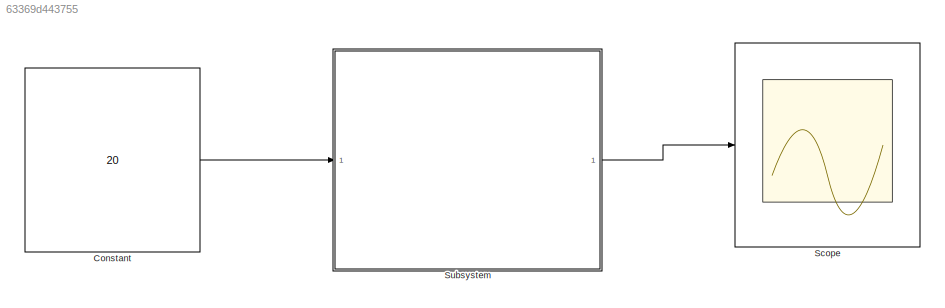
MODEL slx_63369d443755
KIND model
CONFIG AbsTol = auto
CONFIG EnableMultiTasking = off
CONFIG FixedStep = auto
CONFIG MaxStep = auto
CONFIG MinStep = auto
CONFIG RelTol = 1e-3
CONFIG SampleTimeConstraint = Unconstrained
CONFIG SolverName = VariableStepAuto
CONFIG StartTime = 0.0
CONFIG StopTime = 10.0
BLOCK [Constant] Constant
  Value = 20
BLOCK [Scope] Scope
  ActiveDisplayYMaximum = 540.46208333333334
  ActiveDisplayYMinimum = -67.458749999999981
  ContainerLayout = {"WindowBounds":[-9999,1369,1534,759],"gridDimensions":{"w":1,"h":1},"tileCount":1,"tileCoverage":1,"columnWeights":1,"rowWeights":1,"tileOccupancy":{"children":[{"id":"/Scope"},{"id":"/Subsystem/Scope"}]}}
  Floating = off
  GraphicalSettings = {"Style":{"BackgroundColor":[0.12941176470588237,0.12941176470588237,0.12941176470588237],"AxesColor":[0.07058823529411765,0.07058823529411765,0.07058823529411765],"LabelsColor":[0.8509803921568627,0.8509803921568627,0.8509803921568627],"PreserveColors":false,"Visible":[true,true,true,true],"LineStyle":["-","-","-","-"],"LineWidth":[1.5,1.5,1.5,1.5],"BarWidth":[0.9,0.9,0.9,0.9],"LineColor":["auto"...<+2319ch>
  MultipleDisplayCache = [{"MaxYLimMag":540.46208333333334,"MaxYLimReal":540.46208333333334,"MinYLimMag":0,"MinYLimReal":-67.458749999999981,"PlotAsMagnitudePhase":false,"ShowGrid":true,"ShowLegend":false,"Title":"%<SignalLabel>","YLabel":""}]
  NumInputPorts = 1
  Visible = on
  WasSavedAsWebScope = on
  WindowPosition = [649.000000,1.000000,888.000000,761.000000,]
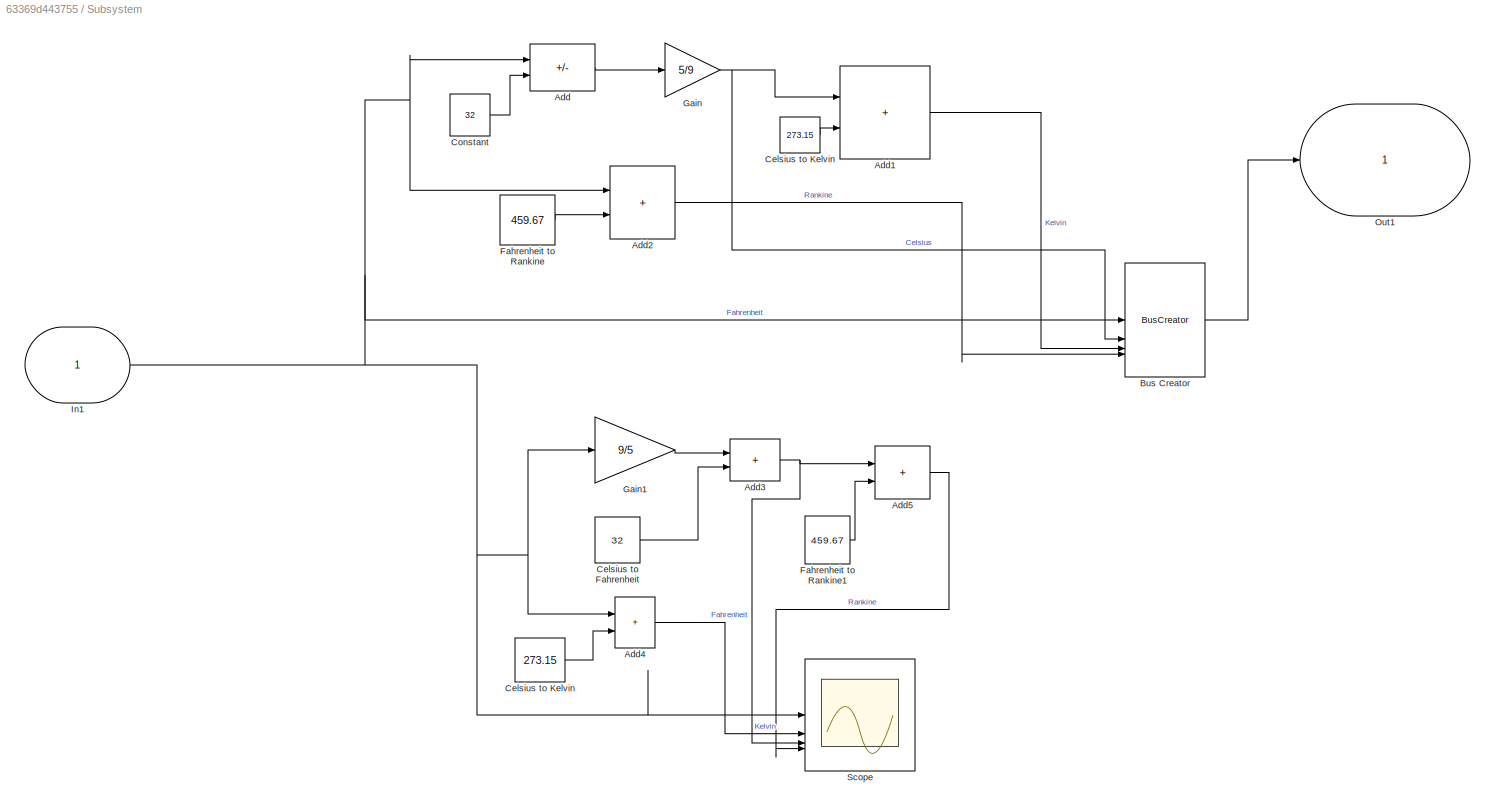
BLOCK [SubSystem] Subsystem
BLOCK [Sum] Subsystem/Add
  IconShape = rectangular
  Inputs = +-
BLOCK [Sum] Subsystem/Add1
  IconShape = rectangular
BLOCK [Sum] Subsystem/Add2
  IconShape = rectangular
BLOCK [Sum] Subsystem/Add3
  IconShape = rectangular
BLOCK [Sum] Subsystem/Add4
  IconShape = rectangular
BLOCK [Sum] Subsystem/Add5
  IconShape = rectangular
BLOCK [BusCreator] Subsystem/Bus Creator
  DisplayOption = bar
  InheritFromInputs = on
  Inputs = 4
BLOCK [Constant] Subsystem/Celsius to Fahrenheit
  Value = 32
BLOCK [Constant] Subsystem/Celsius to Kelvin
  Value = 273.15
BLOCK [Constant] Subsystem/Celsius to Kelvin 
  Value = 273.15
BLOCK [Constant] Subsystem/Constant
  Value = 32
BLOCK [Constant] Subsystem/Fahrenheit to Rankine
  Value = 459.67
BLOCK [Constant] Subsystem/Fahrenheit to Rankine1
  Value = 459.67
BLOCK [Gain] Subsystem/Gain
  Gain = 5/9
BLOCK [Gain] Subsystem/Gain1
  Gain = 9/5
BLOCK [Inport] Subsystem/In1
BLOCK [Outport] Subsystem/Out1
BLOCK [Scope] Subsystem/Scope
  ActiveDisplayYMaximum = 648.12875000000008
  ActiveDisplayYMinimum = -16.458749999999995
  ContainerLayout = {"WindowBounds":[-9999,1369,1534,759],"gridDimensions":{"w":1,"h":1},"tileCount":1,"tileCoverage":1,"columnWeights":1,"rowWeights":1,"tileOccupancy":{"children":[{"id":"/Scope"},{"id":"/Subsystem/Scope"}]}}
  DataLoggingVariableName = ScopeData1
  DisplayFullPath = on
  Floating = off
  GraphicalSettings = {"Style":{"BackgroundColor":[0.12941176470588237,0.12941176470588237,0.12941176470588237],"AxesColor":[0.07058823529411765,0.07058823529411765,0.07058823529411765],"LabelsColor":[0.8509803921568627,0.8509803921568627,0.8509803921568627],"PreserveColors":false,"Visible":[true,true,true,true],"LineStyle":["-","-","-","-"],"LineWidth":[1.5,1.5,1.5,1.5],"BarWidth":[0.9,0.9,0.9,0.9],"LineColor":[[1,1,0...<+2270ch>
  LayoutDimensionsString = [1 1]
  MultipleDisplayCache = [{"MaxYLimMag":648.12875000000008,"MaxYLimReal":648.12875000000008,"MinYLimMag":0,"MinYLimReal":-16.458749999999995,"PlotAsMagnitudePhase":false,"ShowGrid":true,"ShowLegend":true,"Title":"Celsius Converter","YLabel":"Celsius"}]
  NumInputPorts = 4
  OpenAtSimulationStart = on
  SampleTime = 10
  ShowLegend = on
  Title = Celsius Converter
  Visible = on
  WasSavedAsWebScope = on
  WindowPosition = [649.000000,1.000000,888.000000,761.000000,]
  YLabel = Celsius
LINE Constant:1 -> Subsystem:1
LINE Subsystem/Add1:1 -> Subsystem/Bus Creator:3
LINE Subsystem/Add2:1 -> Subsystem/Bus Creator:4
NET Subsystem/Add3:1 -> Subsystem/Add5:1, Subsystem/Scope:3
LINE Subsystem/Add4:1 -> Subsystem/Scope:2
LINE Subsystem/Add5:1 -> Subsystem/Scope:4
LINE Subsystem/Add:1 -> Subsystem/Gain:1
LINE Subsystem/Bus Creator:1 -> Subsystem/Out1:1
LINE Subsystem/Celsius to Fahrenheit:1 -> Subsystem/Add3:2
LINE Subsystem/Celsius to Kelvin :1 -> Subsystem/Add4:2
LINE Subsystem/Celsius to Kelvin:1 -> Subsystem/Add1:2
LINE Subsystem/Constant:1 -> Subsystem/Add:2
LINE Subsystem/Fahrenheit to Rankine1:1 -> Subsystem/Add5:2
LINE Subsystem/Fahrenheit to Rankine:1 -> Subsystem/Add2:2
LINE Subsystem/Gain1:1 -> Subsystem/Add3:1
NET Subsystem/Gain:1 -> Subsystem/Add1:1, Subsystem/Bus Creator:2
NET Subsystem/In1:1 -> Subsystem/Add2:1, Subsystem/Add4:1, Subsystem/Add:1, Subsystem/Bus Creator:1, Subsystem/Gain1:1, Subsystem/Scope:1
LINE Subsystem:1 -> Scope:1
note: NET lines group one-source signal fan-out (src -> all destinations, sorted); 1:1 wires keep LINE
